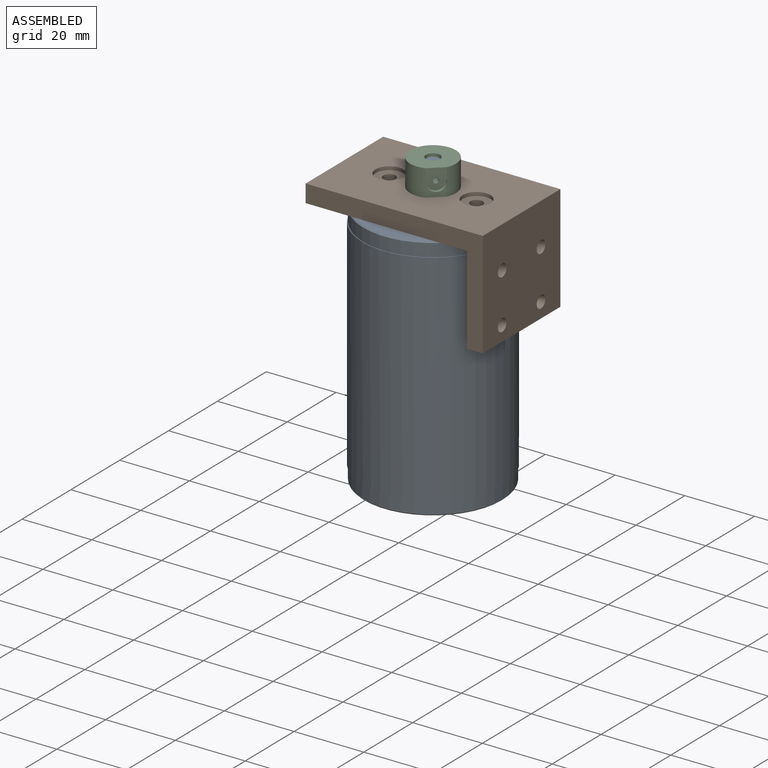
[diagram: assembled view]
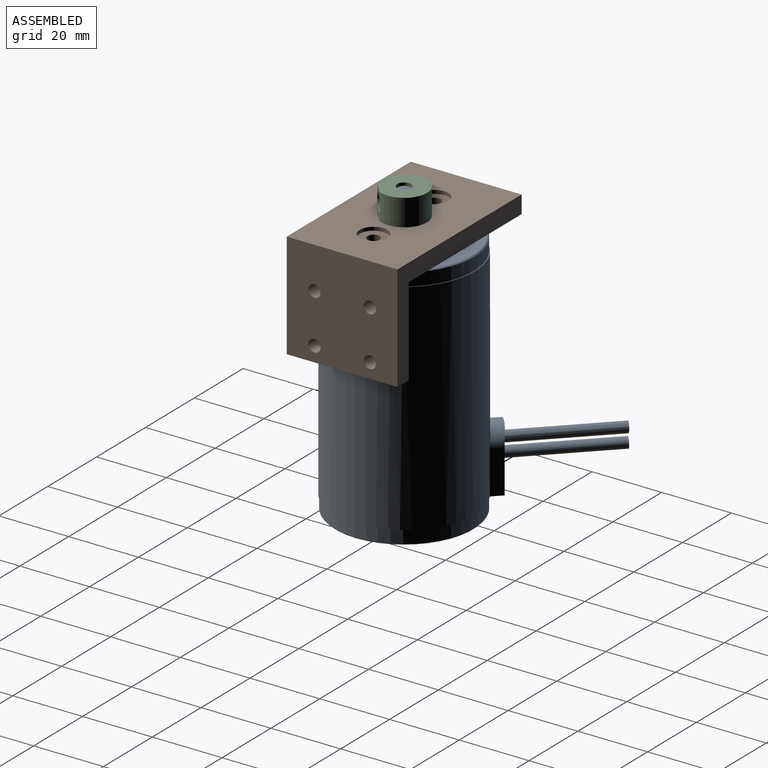
[diagram: assembled view, second angle]
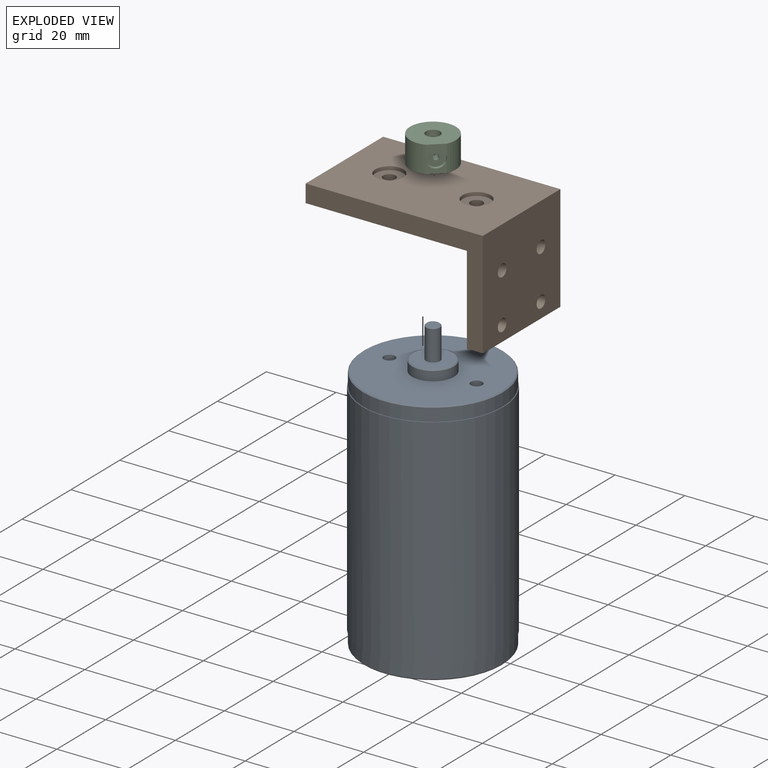
[diagram: exploded view]
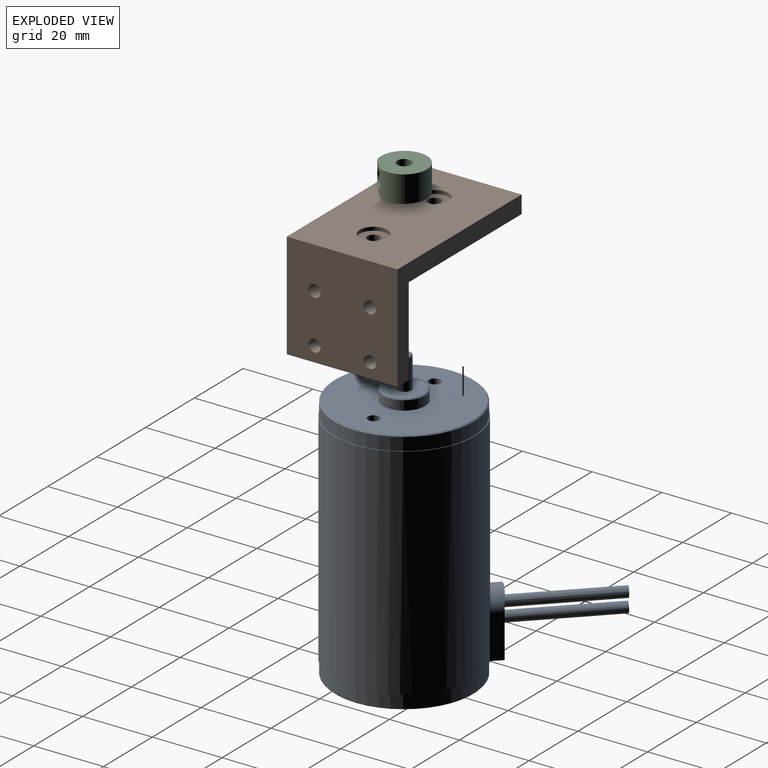
[diagram: exploded view, second angle]
ASSEMBLY  parts=3 mates=2
PART A: 32 faces, bbox 59.6x59.6x84.8 mm
  f0: extruded ~23.33x23.33mm, area 141.4mm2, adj f17,f30,f31
  f1: extruded ~23.33x23.33mm, area 141.5mm2, adj f17,f28,f29
  f2: cone r=19.7mm half-angle=45deg, axis (0,0,-1), area 52.9mm2, adj f13,f18
  f3: cone r=19.7mm half-angle=45deg, axis (0,0,1), area 52.9mm2, adj f12,f23
  f4: cone r=6.03mm half-angle=45deg, axis (0,0,1), area 16.5mm2, adj f11,f24
  f5: cone r=5.7mm half-angle=45deg, axis (0,0,-1), area 15.6mm2, adj f14,f20
  f6: cone r=1.7mm half-angle=45deg, axis (0,0,-1), area 4.9mm2, adj f15,f19
  f7: cylinder r=1.65mm len=8.1mm, axis (0,0,1), area 84mm2, adj f8,f18
  f8: cone r=1.65mm half-angle=59deg, axis (0,0,1), area 10mm2, adj f7
  f9: cylinder r=1.65mm len=8.1mm, axis (0,0,1), area 84mm2, adj f10,f18
  f10: cone r=1.65mm half-angle=59deg, axis (0,0,1), area 10mm2, adj f9
  f11: cylinder r=6.33mm len=12.65mm, axis (0,0,1), area 47.7mm2, adj f4,f23
  f12: cylinder r=20mm len=40mm, axis (0,0,-1), area 465mm2, adj f3,f22
  f13: cylinder r=20mm len=40mm, axis (0,0,1), area 465mm2, adj f2,f21
  f14: cylinder r=6mm len=12mm, axis (0,0,-1), area 101.8mm2, adj f5,f18
  f15: cylinder r=2mm len=8.7mm, axis (0,0,-1), area 109.3mm2, adj f6,f20
  f16: cylinder r=20.2mm len=63mm, axis (0,0,1), area 7869.7mm2, adj f21,f22,f25,f26,f27
  f17: bspline ~17.85x7.41mm, area 165.1mm2, adj f0,f1,f22,f25,f26,f27,f28,f30
  f18: plane 39.4x39.4mm, normal (0,0,1), area 1089mm2, adj f2,f7,f9,f14
  f19: plane 3.4x3.4mm, normal (0,0,1), area 9.1mm2, adj f6
  f20: plane 11.4x11.4mm, normal (0,0,1), area 89.5mm2, adj f5,f15
  f21: plane 40.4x40.4mm, normal (0,0,1), area 25.3mm2, adj f13,f16
  f22: plane 40.7x40.7mm, normal (0,0,-1), area 60.3mm2, adj f12,f16,f17,f25,f27
  f23: plane 39.4x39.4mm, normal (0,0,-1), area 1093.5mm2, adj f3,f11
  f24: plane 12.05x12.05mm, normal (0,0,-1), area 114mm2, adj f4
  f25: plane 12.5x2.48mm, normal (-0.71,-0.71,0), area 43.8mm2, adj f16,f17,f22,f26
  f26: bspline ~9.56x9.56mm, area 55mm2, adj f16,f17,f25,f27
  f27: plane 12.5x2.48mm, normal (0.71,0.71,0), area 43.8mm2, adj f16,f17,f22,f26
  f28: extruded ~23.33x23.33mm, area 141.3mm2, adj f1,f17,f29
  f29: bspline ~2.63x2.63mm, area 0mm2, adj f1,f28
  f30: extruded ~23.33x23.33mm, area 141.4mm2, adj f0,f17,f31
  f31: bspline ~2.59x2.59mm, area 0mm2, adj f0,f30
PART B: 18 faces, bbox 50.8x31.8x30.5 mm
  f0: plane 46.23x31.77mm, normal (0,0,-1), area 1449mm2, adj f1,f2,f4,f6,f9,f12
  f1: plane 31.77x5.08mm, normal (-1,0,0), area 161.4mm2, adj f0,f2,f4,f5
  f2: plane 50.8x30.48mm, normal (0,-1,0), area 374.2mm2, adj f0,f1,f3,f5,f12,f13
  f3: plane 31.77x30.48mm, normal (1,0,0), area 928.8mm2, adj f2,f4,f5,f13,f14,f15,f16,f17
  f4: plane 50.8x30.48mm, normal (0,1,0), area 374.2mm2, adj f0,f1,f3,f5,f12,f13
  f5: plane 50.8x31.77mm, normal (0,0,1), area 1513.6mm2, adj f1,f2,f3,f4,f8,f11
  f6: cylinder r=1.78mm len=4.08mm, axis (0,0,1), area 45.6mm2, adj f0,f7
  f7: plane 8x8mm, normal (0,0,1), area 40.3mm2, adj f6,f8
  f8: cylinder r=4mm len=8mm, axis (0,0,1), area 25.1mm2, adj f5,f7
  f9: cylinder r=1.78mm len=4.08mm, axis (0,0,1), area 45.6mm2, adj f0,f10
  f10: plane 8x8mm, normal (0,0,1), area 40.3mm2, adj f9,f11
  f11: cylinder r=4mm len=8mm, axis (0,0,1), area 25.1mm2, adj f5,f10
  f12: plane 31.77x25.4mm, normal (-1,0,0), area 767.3mm2, adj f0,f2,f4,f13,f14,f15,f16,f17
  f13: plane 31.77x4.57mm, normal (0,0,-1), area 145.3mm2, adj f2,f3,f4,f12
  f14: cylinder r=1.78mm len=4.57mm, axis (1,0,0), area 51.1mm2, adj f3,f12
  f15: cylinder r=1.78mm len=4.57mm, axis (1,0,0), area 51.1mm2, adj f3,f12
  f16: cylinder r=1.78mm len=4.57mm, axis (1,0,0), area 51.1mm2, adj f3,f12
  f17: cylinder r=1.78mm len=4.57mm, axis (1,0,0), area 51.1mm2, adj f3,f12
PART C: 9 faces, bbox 13.1x13.1x7.6 mm
  f0: plane 3.69x3.68mm, normal (0.67,-0.74,0), area 9.2mm2, adj f2,f4,f6
  f1: plane 3.69x3.68mm, normal (0.67,-0.74,0), area 9.2mm2, adj f2,f5,f6
  f2: cylinder r=6.55mm len=13.11mm, axis (0,0,-1), area 274.7mm2, adj f0,f1,f4,f5,f6
  f3: cylinder r=2.03mm len=7.62mm, axis (0,0,-1), area 95.3mm2, adj f4,f5,f7
  f4: plane 13.11x13.11mm, normal (0,0,1), area 120.3mm2, adj f0,f2,f3
  f5: plane 13.11x13.11mm, normal (0,0,-1), area 120.3mm2, adj f1,f2,f3
  f6: cylinder r=2.5mm len=5mm, axis (0.67,-0.74,0), area 15.8mm2, adj f0,f1,f2,f8
  f7: cylinder r=0.79mm len=3.43mm, axis (0.67,-0.74,0), area 15.9mm2, adj f3,f8
  f8: plane 5x3.7mm, normal (0.67,-0.74,0), area 17.7mm2, adj f6,f7
PLACE A t=(-236.85,-67.59,-47.78)mm
PLACE B t=(-293.12,-69.5,-42.7)mm
PLACE C t=(-236.85,-99.63,-42.7)mm
MATE fastened B.f9 <-> A.f7  axis (0,0,-1) through (-249.35,-67.59,-47.78)mm
MATE fastened C.f3 <-> B.f5  axis (0,0,-1) through (-236.85,-67.59,-42.7)mm
